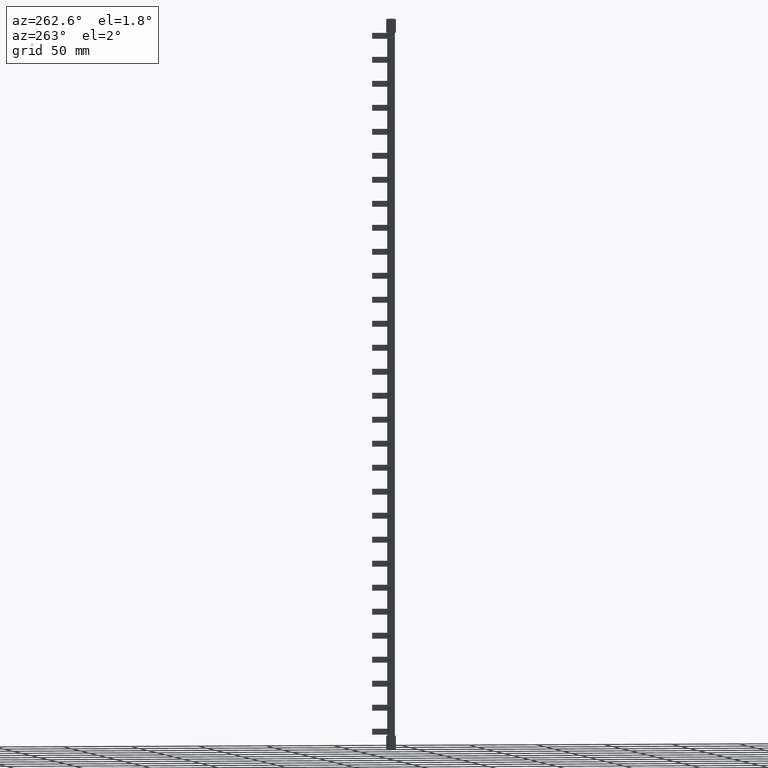
[diagram: clean part render]
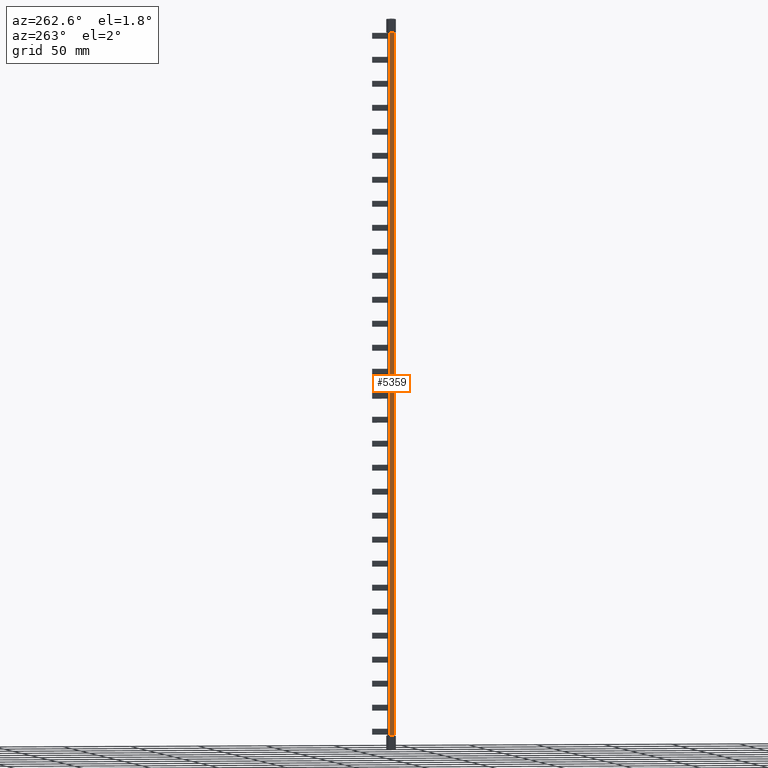
[diagram: same view with one face highlighted and labeled with its STEP entity id]
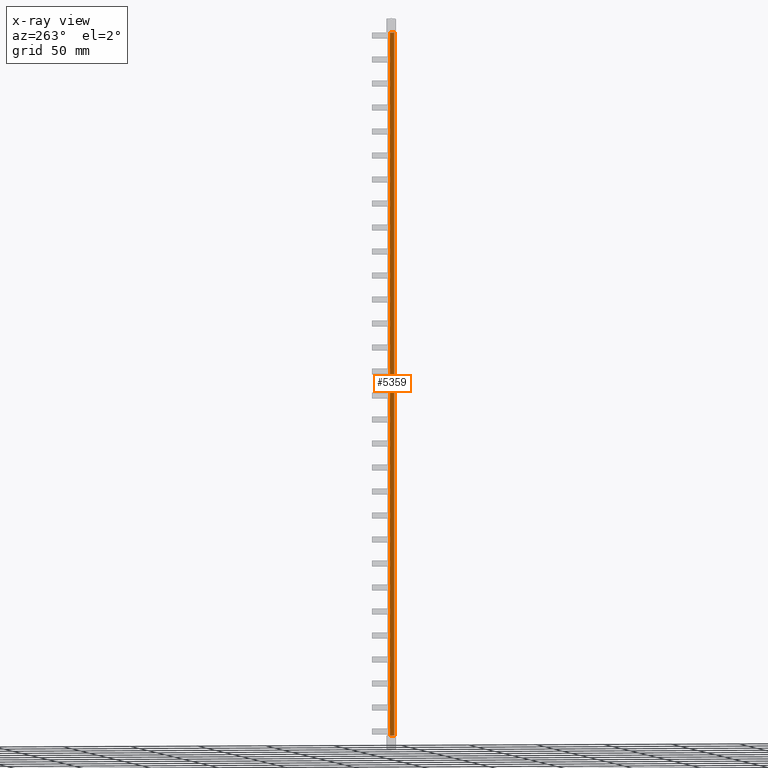
[diagram: x-ray of the same camera — body ghosted, the highlighted face saturated]
A machine part, auxiliary view. The second image highlights one B-rep face of the part: STEP entity #5359.
The next image is the same camera in x-ray: the body ghosted, the highlighted face saturated — about 0% of this face is hidden behind the body in this view.
In plain terms, the highlighted planar face has unit normal (1, 0, -0).
Its self-contained STEP definition (entity closure, byte-faithful):
#5359 = ADVANCED_FACE ( 'NONE', ( #8375 ), #8367, .F. ) ;
#8365 = DIRECTION ( 'NONE',  ( 1.000000000000000000, 3.563533965728333600E-014, -0.0000000000000000000 ) ) ;
#8367 = PLANE ( 'NONE',  #30672 ) ;
#8375 = FACE_OUTER_BOUND ( 'NONE', #35561, .T. ) ;
#8393 = DIRECTION ( 'NONE',  ( -3.563533965728333600E-014, 1.000000000000000000, 0.0000000000000000000 ) ) ;
#8395 = CARTESIAN_POINT ( 'NONE',  ( -0.5000000000000559600, 3.615511274208504900, 219.0000000000000000 ) ) ;
#9562 = CARTESIAN_POINT ( 'NONE',  ( -0.4999999999999271700, -5.682891657265358600E-009, 209.9000000000000100 ) ) ;
#9572 = DIRECTION ( 'NONE',  ( 3.563533965728333600E-014, -1.000000000000000000, -3.939912128522177000E-031 ) ) ;
#9576 = LINE ( 'NONE', #9562, #38156 ) ;
#9949 = EDGE_CURVE ( 'NONE', #40572, #40577, #9576, .T. ) ;
#11166 = ORIENTED_EDGE ( 'NONE', *, *, #18052, .T. ) ;
#11189 = ORIENTED_EDGE ( 'NONE', *, *, #9949, .F. ) ;
#11190 = ORIENTED_EDGE ( 'NONE', *, *, #18214, .F. ) ;
#11200 = ORIENTED_EDGE ( 'NONE', *, *, #18190, .T. ) ;
#17050 = VECTOR ( 'NONE', #22278, 1000.000000000000000 ) ;
#17115 = VECTOR ( 'NONE', #23611, 1000.000000000000000 ) ;
#17146 = VECTOR ( 'NONE', #23551, 1000.000000000000100 ) ;
#18052 = EDGE_CURVE ( 'NONE', #40572, #43825, #22288, .T. ) ;
#18190 = EDGE_CURVE ( 'NONE', #43825, #43809, #23594, .T. ) ;
#18214 = EDGE_CURVE ( 'NONE', #40577, #43809, #23615, .T. ) ;
#20406 = CARTESIAN_POINT ( 'NONE',  ( -0.4999997471736403200, 3.615511274208507600, 209.9000000000000100 ) ) ;
#20433 = CARTESIAN_POINT ( 'NONE',  ( -0.4999997117630233800, 0.4999999943170493900, 209.9000000000000100 ) ) ;
#22254 = CARTESIAN_POINT ( 'NONE',  ( -0.5000000000000466300, 3.615511274208504900, 219.0000000000000000 ) ) ;
#22278 = DIRECTION ( 'NONE',  ( -0.0000000000000000000, -0.0000000000000000000, -1.000000000000000000 ) ) ;
#22288 = LINE ( 'NONE', #22254, #17050 ) ;
#23551 = DIRECTION ( 'NONE',  ( 1.136590875544364300E-008, -0.9999999999999998900, 3.944304527801444700E-031 ) ) ;
#23587 = CARTESIAN_POINT ( 'NONE',  ( -0.4999997511312341300, 3.963709902452906800, -305.9000000000000300 ) ) ;
#23594 = LINE ( 'NONE', #23587, #17146 ) ;
#23611 = DIRECTION ( 'NONE',  ( -0.0000000000000000000, -0.0000000000000000000, -1.000000000000000000 ) ) ;
#23615 = LINE ( 'NONE', #23648, #17115 ) ;
#23648 = CARTESIAN_POINT ( 'NONE',  ( -0.4999999999999449300, 0.5000000000000004400, 219.0000000000000000 ) ) ;
#30672 = AXIS2_PLACEMENT_3D ( 'NONE', #8395, #8365, #8393 ) ;
#35561 = EDGE_LOOP ( 'NONE', ( #11189, #11166, #11200, #11190 ) ) ;
#38156 = VECTOR ( 'NONE', #9572, 1000.000000000000000 ) ;
#40572 = VERTEX_POINT ( 'NONE', #20406 ) ;
#40577 = VERTEX_POINT ( 'NONE', #20433 ) ;
#41971 = CARTESIAN_POINT ( 'NONE',  ( -0.4999997117630233800, 0.4999999943170493900, -305.9000000000000300 ) ) ;
#41990 = CARTESIAN_POINT ( 'NONE',  ( -0.4999997471736403200, 3.615511274208507600, -305.9000000000000300 ) ) ;
#43809 = VERTEX_POINT ( 'NONE', #41971 ) ;
#43825 = VERTEX_POINT ( 'NONE', #41990 ) ;